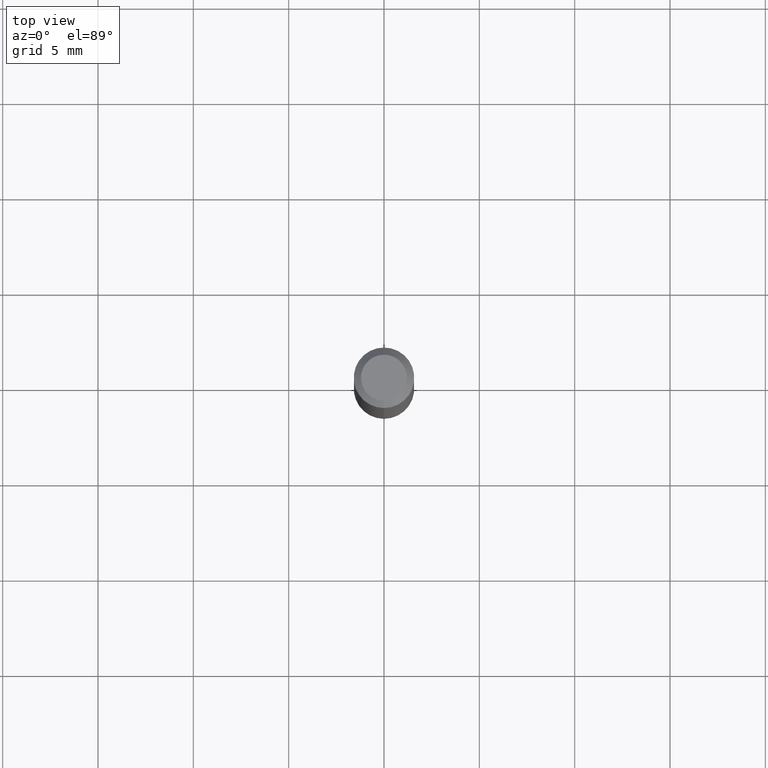
[diagram: clean part render]
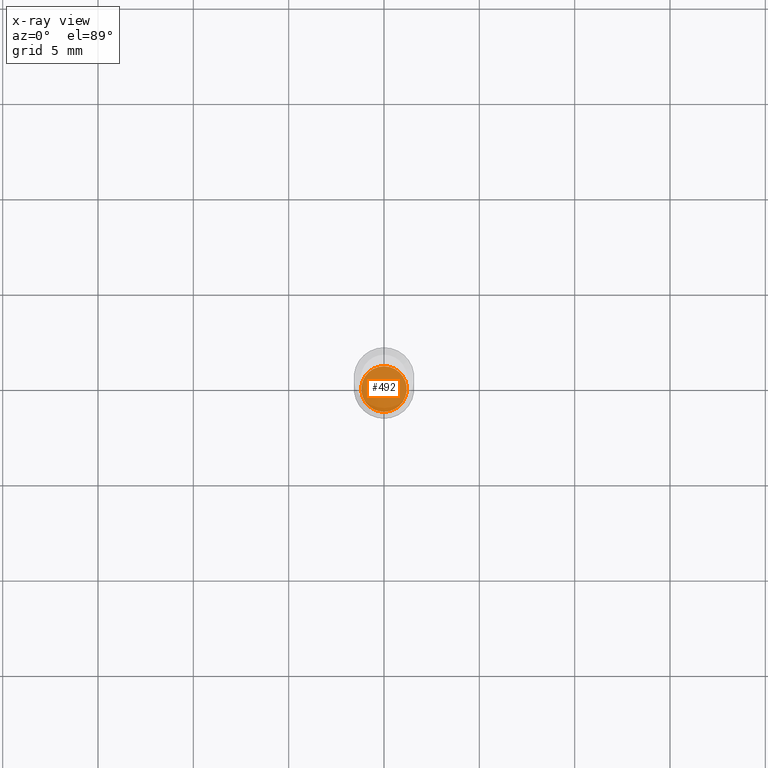
[diagram: x-ray — body ghosted, one internal face saturated and labeled with its STEP entity id]
A machine part, top view, then the same camera in x-ray: the body is ghosted and one INTERNAL B-rep face — a face not visible from any outside direction — is saturated and labeled: STEP entity #492.
In plain terms, the highlighted planar face has unit normal (-0, 0, 1).
Its self-contained STEP definition (entity closure, byte-faithful):
#19 = CARTESIAN_POINT ( 'NONE',  ( 3.319755965653323105E-29, -4.739640003934733907E-15, -1.357500000000000151 ) ) ;
#49 = FACE_OUTER_BOUND ( 'NONE', #325, .T. ) ;
#55 = CARTESIAN_POINT ( 'NONE',  ( 3.357314426466801272E-16, 0.04699999999999526085, -1.357500000000000373 ) ) ;
#114 = CARTESIAN_POINT ( 'NONE',  ( 3.319755965653323105E-29, -4.739640003934733907E-15, -1.357500000000000151 ) ) ;
#115 = DIRECTION ( 'NONE',  ( -6.982962677686266711E-15, -1.000000000000000000, 5.812442539711199378E-15 ) ) ;
#143 = DIRECTION ( 'NONE',  ( -6.982962677686266711E-15, -1.000000000000000000, 5.812442539711199378E-15 ) ) ;
#158 = AXIS2_PLACEMENT_3D ( 'NONE', #318, #475, #115 ) ;
#163 = CIRCLE ( 'NONE', #158, 0.04699999999999999317 ) ;
#169 = AXIS2_PLACEMENT_3D ( 'NONE', #19, #458, #392 ) ;
#227 = AXIS2_PLACEMENT_3D ( 'NONE', #114, #324, #143 ) ;
#233 = ORIENTED_EDGE ( 'NONE', *, *, #309, .F. ) ;
#252 = EDGE_CURVE ( 'NONE', #431, #396, #478, .T. ) ;
#309 = EDGE_CURVE ( 'NONE', #396, #431, #163, .T. ) ;
#318 = CARTESIAN_POINT ( 'NONE',  ( 3.319755965653323105E-29, -4.739640003934733907E-15, -1.357500000000000151 ) ) ;
#324 = DIRECTION ( 'NONE',  ( -2.445492424054012945E-29, 3.491447516710668952E-15, 1.000000000000000000 ) ) ;
#325 = EDGE_LOOP ( 'NONE', ( #491, #233 ) ) ;
#335 = CARTESIAN_POINT ( 'NONE',  ( -3.281992458512213224E-16, -0.04700000000000473244, -1.357499999999999929 ) ) ;
#339 = PLANE ( 'NONE',  #169 ) ;
#392 = DIRECTION ( 'NONE',  ( -6.982962677686265922E-15, -1.000000000000000000, 3.491447516710668952E-15 ) ) ;
#396 = VERTEX_POINT ( 'NONE', #55 ) ;
#431 = VERTEX_POINT ( 'NONE', #335 ) ;
#458 = DIRECTION ( 'NONE',  ( -2.445492424054012665E-29, 3.491447516710668952E-15, 1.000000000000000000 ) ) ;
#475 = DIRECTION ( 'NONE',  ( -2.445492424054012945E-29, 3.491447516710668952E-15, 1.000000000000000000 ) ) ;
#478 = CIRCLE ( 'NONE', #227, 0.04699999999999999317 ) ;
#491 = ORIENTED_EDGE ( 'NONE', *, *, #252, .F. ) ;
#492 = ADVANCED_FACE ( 'NONE', ( #49 ), #339, .F. ) ;